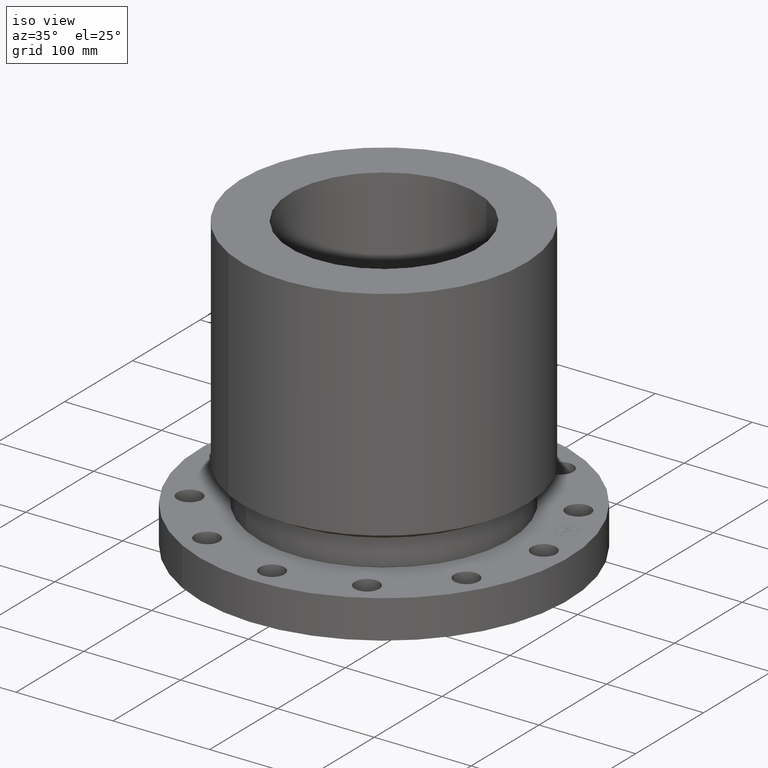
[diagram: clean part render]
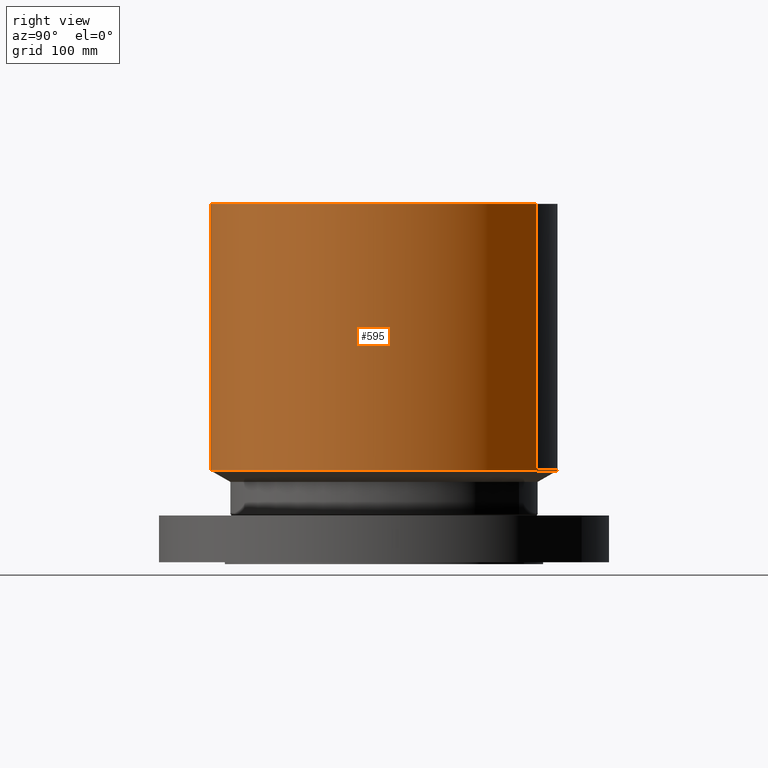
[diagram: tour spotlight — one face highlighted and labeled with its STEP entity id]
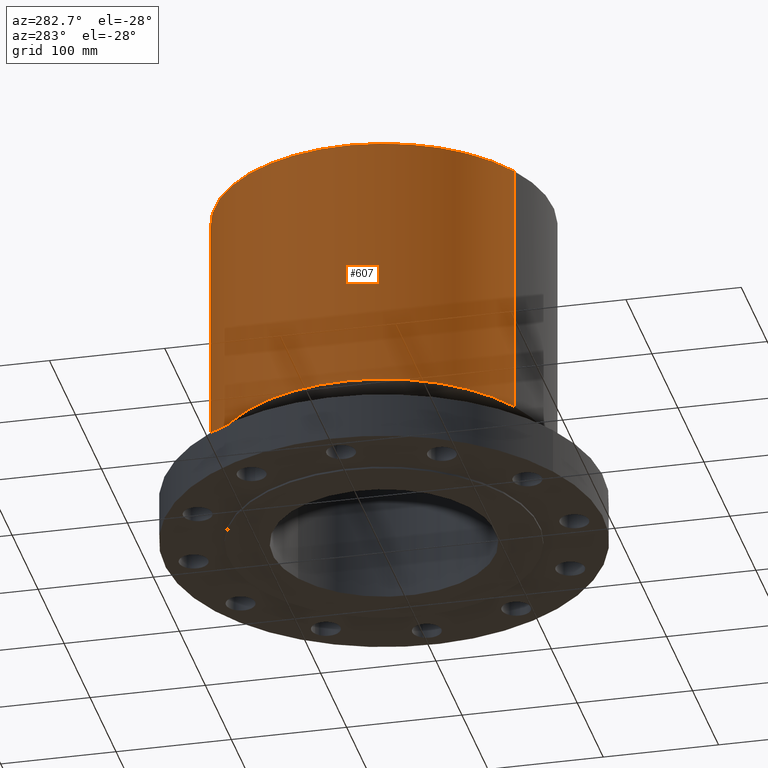
[diagram: tour spotlight — one face highlighted and labeled with its STEP entity id]
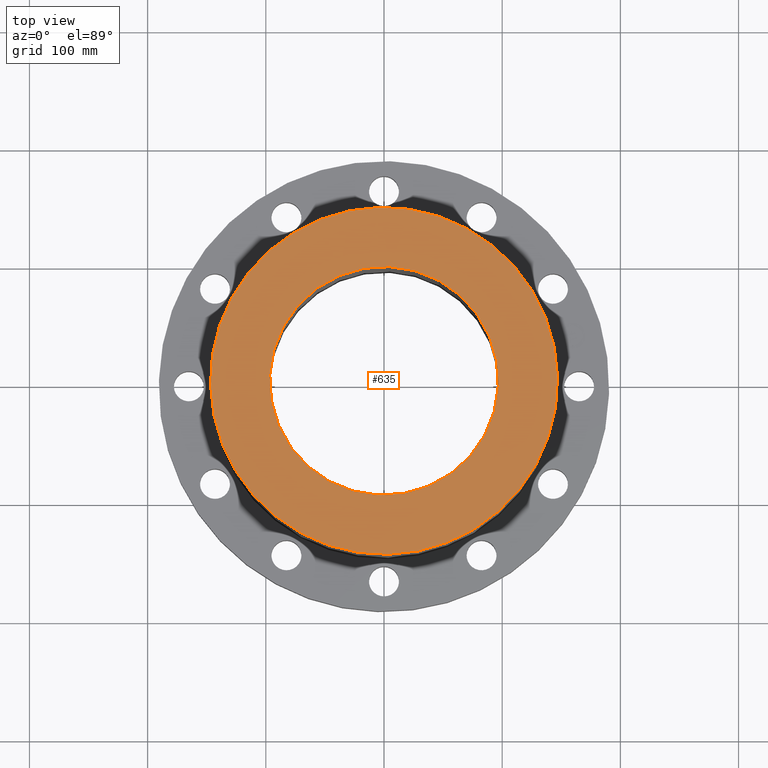
[diagram: tour spotlight — one face highlighted and labeled with its STEP entity id]
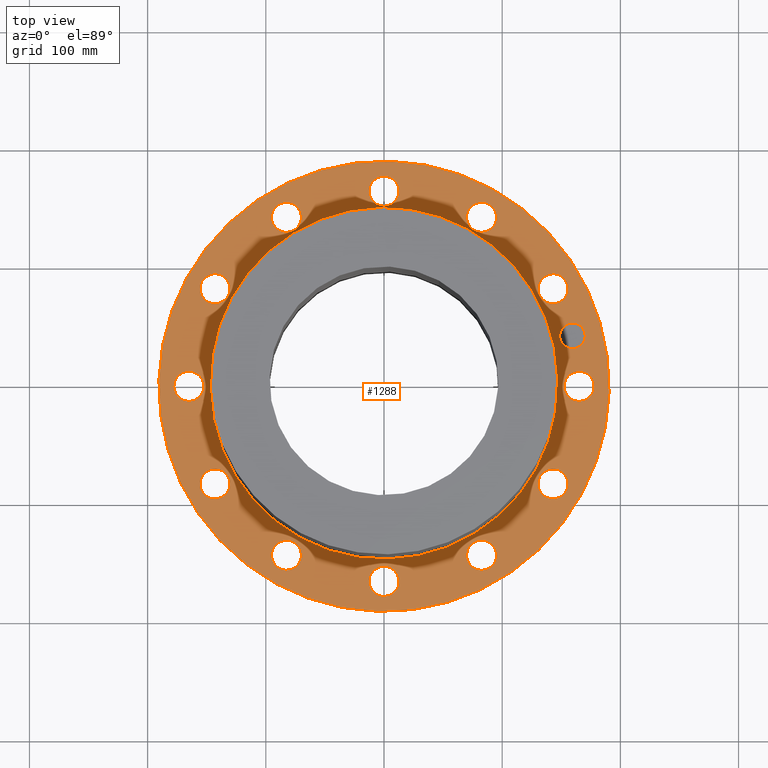
[diagram: tour spotlight — one face highlighted and labeled with its STEP entity id]
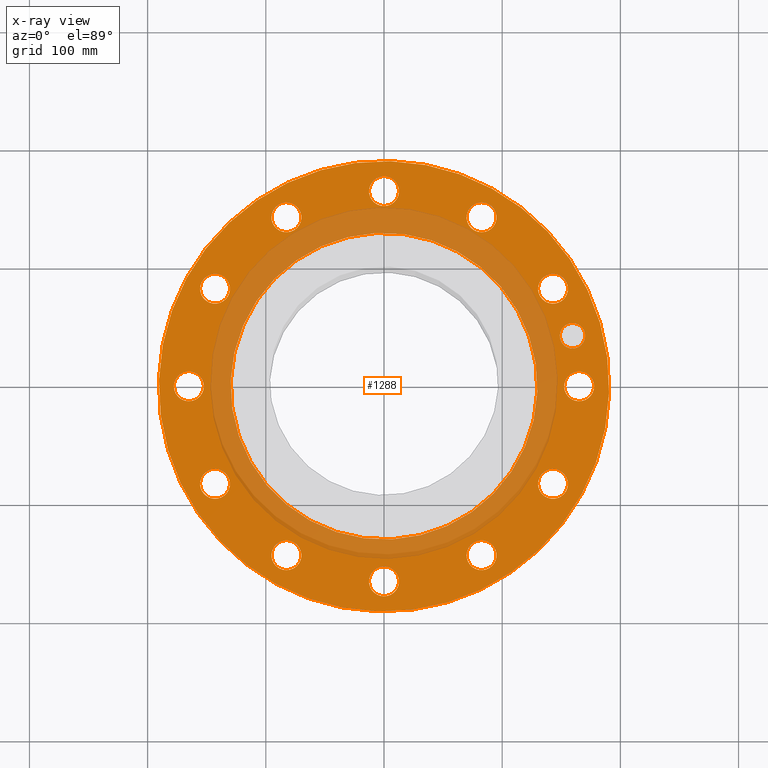
[diagram: x-ray of the same camera — body ghosted, this tour face saturated]
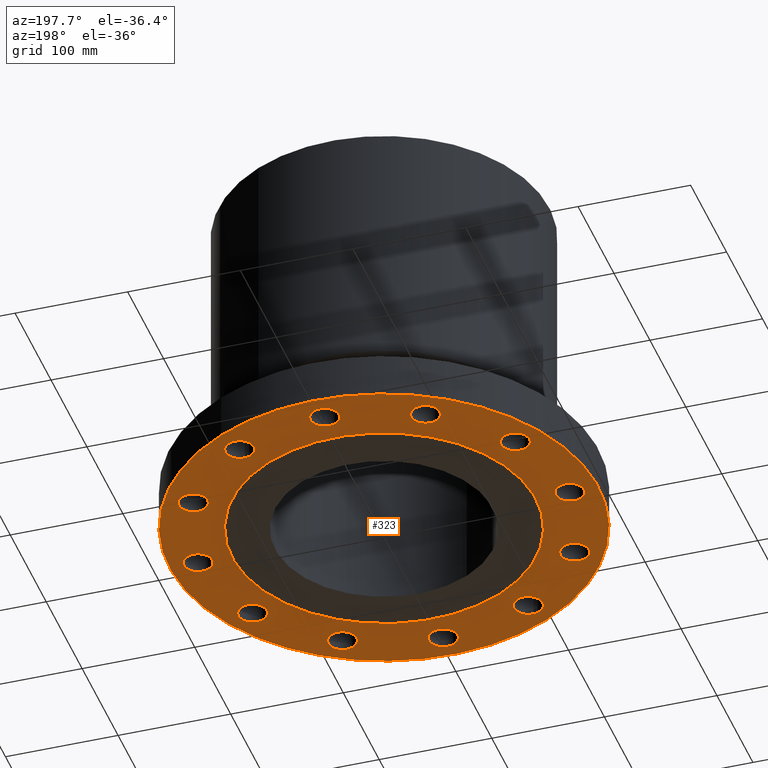
[diagram: tour spotlight — one face highlighted and labeled with its STEP entity id]
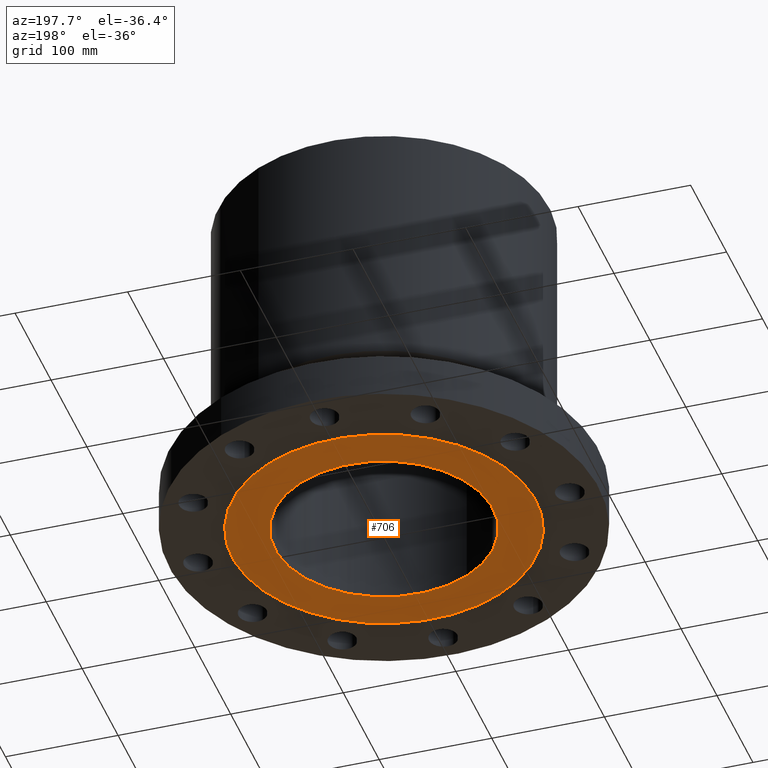
[diagram: tour spotlight — one face highlighted and labeled with its STEP entity id]
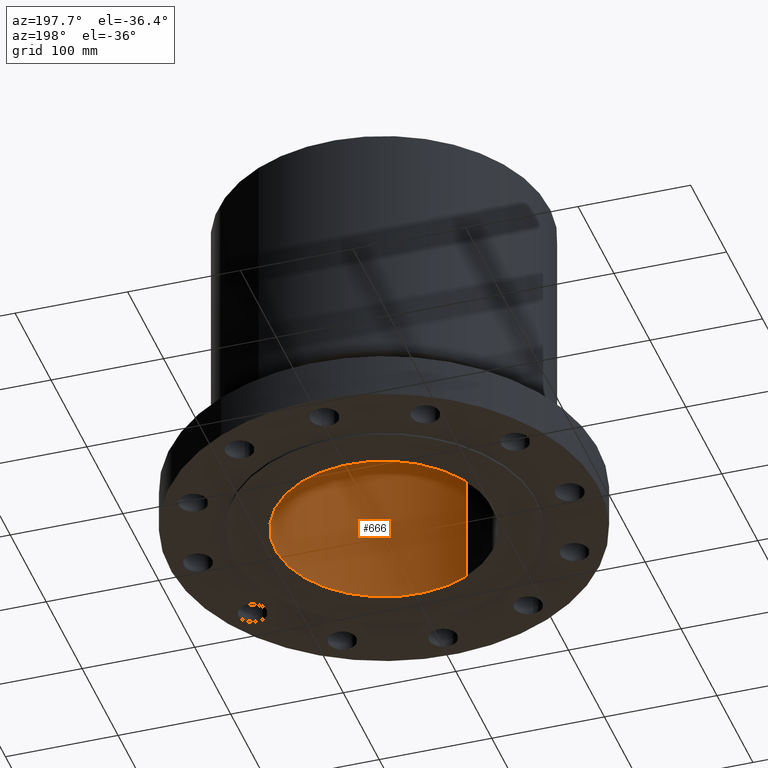
[diagram: tour spotlight — one face highlighted and labeled with its STEP entity id]
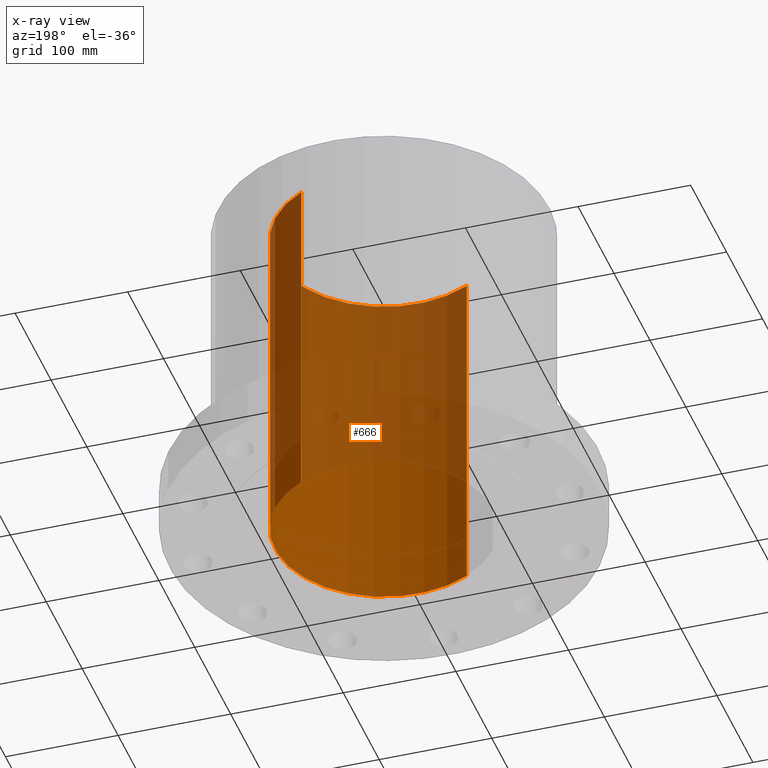
[diagram: x-ray of the same camera — body ghosted, this tour face saturated]
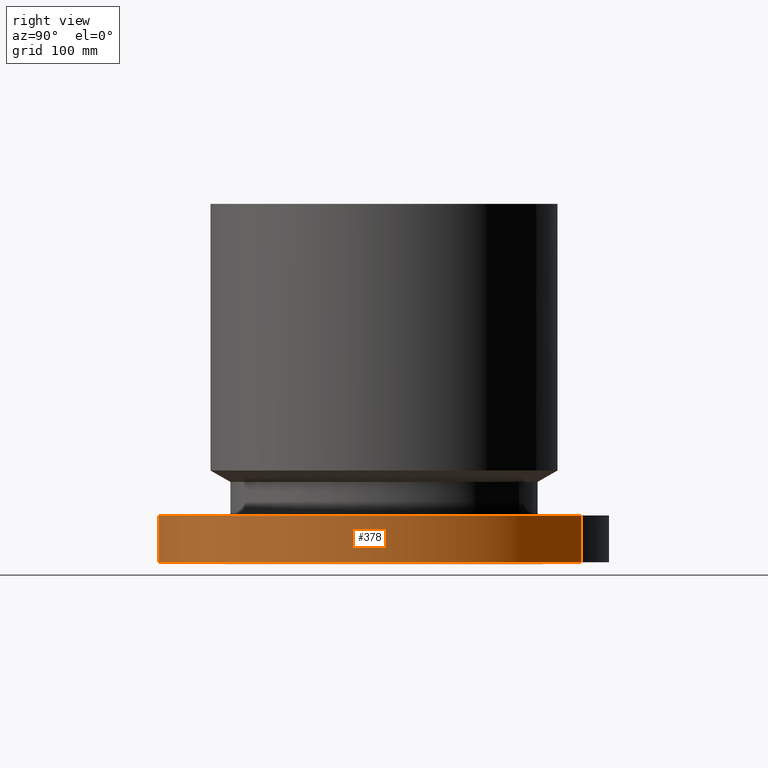
[diagram: tour spotlight — one face highlighted and labeled with its STEP entity id]
A machine part: a face-by-face anatomy tour. The part has 429 B-rep faces; the first image is the clean iso view, then the 8 largest visible faces are spotlighted one at a time (largest first), each with its STEP entity span.

Face 1 — right view, entity #595. In plain terms, the highlighted cylindrical surface (partial cylindrical patch) has radius 146.812 mm, axis along (0, 0, -1).
Definition (entity closure, byte-faithful):
#536=AXIS2_PLACEMENT_3D('Circle Axis2P3D',#534,#535,$) ;
#568=AXIS2_PLACEMENT_3D('Cylinder Axis2P3D',#565,#566,#567) ;
#579=AXIS2_PLACEMENT_3D('Circle Axis2P3D',#577,#578,$) ;
#531=CARTESIAN_POINT('Vertex',(2.77107961314,5.07242720775,3.05566442633)) ;
#534=CARTESIAN_POINT('Axis2P3D Location',(0.,0.,3.05566442633)) ;
#538=CARTESIAN_POINT('Vertex',(-2.77107961314,-5.07242720775,3.05566442633)) ;
#565=CARTESIAN_POINT('Axis2P3D Location',(0.,0.,5.93750000002)) ;
#570=CARTESIAN_POINT('Line Origine',(2.77107961314,5.07242720775,7.49658221319)) ;
#574=CARTESIAN_POINT('Vertex',(2.77107961314,5.07242720775,11.9375)) ;
#577=CARTESIAN_POINT('Axis2P3D Location',(0.,0.,11.9375)) ;
#581=CARTESIAN_POINT('Vertex',(-2.77107961314,-5.07242720775,11.9375)) ;
#584=CARTESIAN_POINT('Line Origine',(-2.77107961314,-5.07242720775,7.49658221319)) ;
#535=DIRECTION('Axis2P3D Direction',(-0.,0.,0.0393700787402)) ;
#566=DIRECTION('Axis2P3D Direction',(0.,0.,-0.0393700787402)) ;
#567=DIRECTION('Axis2P3D XDirection',(-0.0188750212049,-0.0345504945626,0.)) ;
#571=DIRECTION('Vector Direction',(0.,0.,-0.0393700787402)) ;
#578=DIRECTION('Axis2P3D Direction',(0.,0.,-0.0393700787402)) ;
#585=DIRECTION('Vector Direction',(0.,0.,-0.0393700787402)) ;
#572=VECTOR('Line Direction',#571,0.0393700787402) ;
#586=VECTOR('Line Direction',#585,0.0393700787402) ;
#590=ORIENTED_EDGE('',*,*,#540,.F.) ;
#591=ORIENTED_EDGE('',*,*,#576,.T.) ;
#592=ORIENTED_EDGE('',*,*,#583,.T.) ;
#593=ORIENTED_EDGE('',*,*,#588,.F.) ;
#595=ADVANCED_FACE('PartBody',(#594),#569,.T.) ;
#537=CIRCLE('generated circle',#536,5.78000000002) ;
#580=CIRCLE('generated circle',#579,5.78000000002) ;
#569=CYLINDRICAL_SURFACE('generated cylinder',#568,5.78000000002) ;
#540=EDGE_CURVE('',#532,#539,#537,.F.) ;
#576=EDGE_CURVE('',#532,#575,#573,.F.) ;
#583=EDGE_CURVE('',#575,#582,#580,.T.) ;
#588=EDGE_CURVE('',#539,#582,#587,.F.) ;
#589=EDGE_LOOP('',(#590,#591,#592,#593)) ;
#594=FACE_OUTER_BOUND('',#589,.T.) ;
#573=LINE('Line',#570,#572) ;
#587=LINE('Line',#584,#586) ;
#532=VERTEX_POINT('',#531) ;
#539=VERTEX_POINT('',#538) ;
#575=VERTEX_POINT('',#574) ;
#582=VERTEX_POINT('',#581) ;

Face 2 — auxiliary view, entity #607. In plain terms, the highlighted cylindrical surface (partial cylindrical patch) has radius 146.812 mm, axis along (0, 0, -1).
Definition (entity closure, byte-faithful):
#555=AXIS2_PLACEMENT_3D('Circle Axis2P3D',#553,#554,$) ;
#568=AXIS2_PLACEMENT_3D('Cylinder Axis2P3D',#565,#566,#567) ;
#598=AXIS2_PLACEMENT_3D('Circle Axis2P3D',#596,#597,$) ;
#531=CARTESIAN_POINT('Vertex',(2.77107961314,5.07242720775,3.05566442633)) ;
#538=CARTESIAN_POINT('Vertex',(-2.77107961314,-5.07242720775,3.05566442633)) ;
#553=CARTESIAN_POINT('Axis2P3D Location',(0.,0.,3.05566442633)) ;
#565=CARTESIAN_POINT('Axis2P3D Location',(0.,0.,5.93750000002)) ;
#570=CARTESIAN_POINT('Line Origine',(2.77107961314,5.07242720775,7.49658221319)) ;
#574=CARTESIAN_POINT('Vertex',(2.77107961314,5.07242720775,11.9375)) ;
#581=CARTESIAN_POINT('Vertex',(-2.77107961314,-5.07242720775,11.9375)) ;
#584=CARTESIAN_POINT('Line Origine',(-2.77107961314,-5.07242720775,7.49658221319)) ;
#596=CARTESIAN_POINT('Axis2P3D Location',(0.,0.,11.9375)) ;
#554=DIRECTION('Axis2P3D Direction',(-0.,0.,0.0393700787402)) ;
#566=DIRECTION('Axis2P3D Direction',(0.,0.,-0.0393700787402)) ;
#567=DIRECTION('Axis2P3D XDirection',(-0.0188750212049,-0.0345504945626,0.)) ;
#571=DIRECTION('Vector Direction',(0.,0.,-0.0393700787402)) ;
#585=DIRECTION('Vector Direction',(0.,0.,-0.0393700787402)) ;
#597=DIRECTION('Axis2P3D Direction',(0.,0.,-0.0393700787402)) ;
#572=VECTOR('Line Direction',#571,0.0393700787402) ;
#586=VECTOR('Line Direction',#585,0.0393700787402) ;
#602=ORIENTED_EDGE('',*,*,#557,.F.) ;
#603=ORIENTED_EDGE('',*,*,#588,.T.) ;
#604=ORIENTED_EDGE('',*,*,#600,.T.) ;
#605=ORIENTED_EDGE('',*,*,#576,.F.) ;
#607=ADVANCED_FACE('PartBody',(#606),#569,.T.) ;
#556=CIRCLE('generated circle',#555,5.78000000002) ;
#599=CIRCLE('generated circle',#598,5.78000000002) ;
#569=CYLINDRICAL_SURFACE('generated cylinder',#568,5.78000000002) ;
#557=EDGE_CURVE('',#539,#532,#556,.F.) ;
#576=EDGE_CURVE('',#532,#575,#573,.F.) ;
#588=EDGE_CURVE('',#539,#582,#587,.F.) ;
#600=EDGE_CURVE('',#582,#575,#599,.T.) ;
#601=EDGE_LOOP('',(#602,#603,#604,#605)) ;
#606=FACE_OUTER_BOUND('',#601,.T.) ;
#573=LINE('Line',#570,#572) ;
#587=LINE('Line',#584,#586) ;
#532=VERTEX_POINT('',#531) ;
#539=VERTEX_POINT('',#538) ;
#575=VERTEX_POINT('',#574) ;
#582=VERTEX_POINT('',#581) ;

Face 3 — top view, entity #635. In plain terms, the highlighted planar face has unit normal (0, 0, -1).
Definition (entity closure, byte-faithful):
#579=AXIS2_PLACEMENT_3D('Circle Axis2P3D',#577,#578,$) ;
#598=AXIS2_PLACEMENT_3D('Circle Axis2P3D',#596,#597,$) ;
#611=AXIS2_PLACEMENT_3D('Plane Axis2P3D',#608,#609,#610) ;
#619=AXIS2_PLACEMENT_3D('Circle Axis2P3D',#617,#618,$) ;
#628=AXIS2_PLACEMENT_3D('Circle Axis2P3D',#626,#627,$) ;
#574=CARTESIAN_POINT('Vertex',(2.77107961314,5.07242720775,11.9375)) ;
#577=CARTESIAN_POINT('Axis2P3D Location',(0.,0.,11.9375)) ;
#581=CARTESIAN_POINT('Vertex',(-2.77107961314,-5.07242720775,11.9375)) ;
#596=CARTESIAN_POINT('Axis2P3D Location',(0.,0.,11.9375)) ;
#608=CARTESIAN_POINT('Axis2P3D Location',(0.,5.78000000002,11.9375)) ;
#617=CARTESIAN_POINT('Axis2P3D Location',(0.,0.,11.9375)) ;
#621=CARTESIAN_POINT('Vertex',(-1.82661130209,-3.34358956082,11.9375)) ;
#623=CARTESIAN_POINT('Vertex',(1.82661130209,3.34358956082,11.9375)) ;
#626=CARTESIAN_POINT('Axis2P3D Location',(0.,0.,11.9375)) ;
#578=DIRECTION('Axis2P3D Direction',(0.,0.,-0.0393700787402)) ;
#597=DIRECTION('Axis2P3D Direction',(0.,0.,-0.0393700787402)) ;
#609=DIRECTION('Axis2P3D Direction',(0.,0.,-0.0393700787402)) ;
#610=DIRECTION('Axis2P3D XDirection',(0.0393700787402,0.,0.)) ;
#618=DIRECTION('Axis2P3D Direction',(0.,0.,-0.0393700787402)) ;
#627=DIRECTION('Axis2P3D Direction',(0.,0.,-0.0393700787402)) ;
#614=ORIENTED_EDGE('',*,*,#583,.F.) ;
#615=ORIENTED_EDGE('',*,*,#600,.F.) ;
#632=ORIENTED_EDGE('',*,*,#625,.T.) ;
#633=ORIENTED_EDGE('',*,*,#630,.T.) ;
#634=FACE_BOUND('',#631,.T.) ;
#635=ADVANCED_FACE('PartBody',(#616,#634),#612,.F.) ;
#580=CIRCLE('generated circle',#579,5.78000000002) ;
#599=CIRCLE('generated circle',#598,5.78000000002) ;
#620=CIRCLE('generated circle',#619,3.81000000002) ;
#629=CIRCLE('generated circle',#628,3.81000000002) ;
#583=EDGE_CURVE('',#575,#582,#580,.T.) ;
#600=EDGE_CURVE('',#582,#575,#599,.T.) ;
#625=EDGE_CURVE('',#622,#624,#620,.T.) ;
#630=EDGE_CURVE('',#624,#622,#629,.T.) ;
#613=EDGE_LOOP('',(#614,#615)) ;
#631=EDGE_LOOP('',(#632,#633)) ;
#616=FACE_OUTER_BOUND('',#613,.T.) ;
#612=PLANE('',#611) ;
#575=VERTEX_POINT('',#574) ;
#582=VERTEX_POINT('',#581) ;
#622=VERTEX_POINT('',#621) ;
#624=VERTEX_POINT('',#623) ;

Face 4 — top view, entity #1288. An x-ray twin of the same camera follows (body ghosted, this face saturated) — the face is partly hidden behind the body. In plain terms, the highlighted planar face has unit normal (0, 0, -1).
Definition (entity closure, byte-faithful):
#51=AXIS2_PLACEMENT_3D('Circle Axis2P3D',#49,#50,$) ;
#326=AXIS2_PLACEMENT_3D('Circle Axis2P3D',#324,#325,$) ;
#350=AXIS2_PLACEMENT_3D('Circle Axis2P3D',#348,#349,$) ;
#369=AXIS2_PLACEMENT_3D('Circle Axis2P3D',#367,#368,$) ;
#386=AXIS2_PLACEMENT_3D('Circle Axis2P3D',#384,#385,$) ;
#421=AXIS2_PLACEMENT_3D('Circle Axis2P3D',#419,#420,$) ;
#750=AXIS2_PLACEMENT_3D('Circle Axis2P3D',#748,#749,$) ;
#769=AXIS2_PLACEMENT_3D('Circle Axis2P3D',#767,#768,$) ;
#793=AXIS2_PLACEMENT_3D('Circle Axis2P3D',#791,#792,$) ;
#812=AXIS2_PLACEMENT_3D('Circle Axis2P3D',#810,#811,$) ;
#836=AXIS2_PLACEMENT_3D('Circle Axis2P3D',#834,#835,$) ;
#855=AXIS2_PLACEMENT_3D('Circle Axis2P3D',#853,#854,$) ;
#879=AXIS2_PLACEMENT_3D('Circle Axis2P3D',#877,#878,$) ;
#898=AXIS2_PLACEMENT_3D('Circle Axis2P3D',#896,#897,$) ;
#922=AXIS2_PLACEMENT_3D('Circle Axis2P3D',#920,#921,$) ;
#941=AXIS2_PLACEMENT_3D('Circle Axis2P3D',#939,#940,$) ;
#965=AXIS2_PLACEMENT_3D('Circle Axis2P3D',#963,#964,$) ;
#984=AXIS2_PLACEMENT_3D('Circle Axis2P3D',#982,#983,$) ;
#1008=AXIS2_PLACEMENT_3D('Circle Axis2P3D',#1006,#1007,$) ;
#1027=AXIS2_PLACEMENT_3D('Circle Axis2P3D',#1025,#1026,$) ;
#1051=AXIS2_PLACEMENT_3D('Circle Axis2P3D',#1049,#1050,$) ;
#1070=AXIS2_PLACEMENT_3D('Circle Axis2P3D',#1068,#1069,$) ;
#1094=AXIS2_PLACEMENT_3D('Circle Axis2P3D',#1092,#1093,$) ;
#1113=AXIS2_PLACEMENT_3D('Circle Axis2P3D',#1111,#1112,$) ;
#1137=AXIS2_PLACEMENT_3D('Circle Axis2P3D',#1135,#1136,$) ;
#1156=AXIS2_PLACEMENT_3D('Circle Axis2P3D',#1154,#1155,$) ;
#1180=AXIS2_PLACEMENT_3D('Circle Axis2P3D',#1178,#1179,$) ;
#1199=AXIS2_PLACEMENT_3D('Circle Axis2P3D',#1197,#1198,$) ;
#1212=AXIS2_PLACEMENT_3D('Plane Axis2P3D',#1209,#1210,#1211) ;
#1272=AXIS2_PLACEMENT_3D('Circle Axis2P3D',#1270,#1271,$) ;
#1281=AXIS2_PLACEMENT_3D('Circle Axis2P3D',#1279,#1280,$) ;
#44=CARTESIAN_POINT('Vertex',(6.06120871908,-0.239712769303,1.55750000001)) ;
#49=CARTESIAN_POINT('Axis2P3D Location',(6.50000000003,0.,1.55750000001)) ;
#53=CARTESIAN_POINT('Vertex',(6.93879128097,0.239712769303,1.55750000001)) ;
#324=CARTESIAN_POINT('Axis2P3D Location',(6.50000000003,0.,1.55750000001)) ;
#345=CARTESIAN_POINT('Vertex',(-3.59569153955,-6.5818692142,1.55750000001)) ;
#348=CARTESIAN_POINT('Axis2P3D Location',(0.,0.,1.55750000001)) ;
#352=CARTESIAN_POINT('Vertex',(3.59569153955,6.5818692142,1.55750000001)) ;
#367=CARTESIAN_POINT('Axis2P3D Location',(0.,0.,1.55750000001)) ;
#384=CARTESIAN_POINT('Axis2P3D Location',(0.,0.,1.55750000001)) ;
#388=CARTESIAN_POINT('Vertex',(2.44986450228,4.48444689128,1.55750000001)) ;
#390=CARTESIAN_POINT('Vertex',(-2.44986450228,-4.48444689128,1.55750000001)) ;
#419=CARTESIAN_POINT('Axis2P3D Location',(0.,0.,1.55750000001)) ;
#745=CARTESIAN_POINT('Vertex',(5.12930434371,-3.23820170737,1.55750000001)) ;
#748=CARTESIAN_POINT('Axis2P3D Location',(5.62916512462,-3.25000000001,1.55750000001)) ;
#752=CARTESIAN_POINT('Vertex',(6.12902590553,-3.26179829266,1.55750000001)) ;
#767=CARTESIAN_POINT('Axis2P3D Location',(5.62916512462,-3.25000000001,1.55750000001)) ;
#788=CARTESIAN_POINT('Vertex',(2.82300701171,-5.36901711301,1.55750000001)) ;
#791=CARTESIAN_POINT('Axis2P3D Location',(3.25000000001,-5.62916512462,1.55750000001)) ;
#795=CARTESIAN_POINT('Vertex',(3.67699298831,-5.88931313623,1.55750000001)) ;
#810=CARTESIAN_POINT('Axis2P3D Location',(3.25000000001,-5.62916512462,1.55750000001)) ;
#831=CARTESIAN_POINT('Vertex',(-0.239712769303,-6.06120871908,1.55750000001)) ;
#834=CARTESIAN_POINT('Axis2P3D Location',(-7.2095472848E-016,-6.50000000003,1.55750000001)) ;
#838=CARTESIAN_POINT('Vertex',(0.239712769303,-6.93879128097,1.55750000001)) ;
#853=CARTESIAN_POINT('Axis2P3D Location',(-7.2095472848E-016,-6.50000000003,1.55750000001)) ;
#874=CARTESIAN_POINT('Vertex',(-3.23820170737,-5.12930434371,1.55750000001)) ;
#877=CARTESIAN_POINT('Axis2P3D Location',(-3.25000000001,-5.62916512462,1.55750000001)) ;
#881=CARTESIAN_POINT('Vertex',(-3.26179829266,-6.12902590553,1.55750000001)) ;
#896=CARTESIAN_POINT('Axis2P3D Location',(-3.25000000001,-5.62916512462,1.55750000001)) ;
#917=CARTESIAN_POINT('Vertex',(-5.36901711301,-2.82300701171,1.55750000001)) ;
#920=CARTESIAN_POINT('Axis2P3D Location',(-5.62916512462,-3.25000000001,1.55750000001)) ;
#924=CARTESIAN_POINT('Vertex',(-5.88931313623,-3.67699298831,1.55750000001)) ;
#939=CARTESIAN_POINT('Axis2P3D Location',(-5.62916512462,-3.25000000001,1.55750000001)) ;
#960=CARTESIAN_POINT('Vertex',(-6.06120871908,0.239712769303,1.55750000001)) ;
#963=CARTESIAN_POINT('Axis2P3D Location',(-6.50000000003,-7.96020419449E-016,1.55750000001)) ;
#967=CARTESIAN_POINT('Vertex',(-6.93879128097,-0.239712769303,1.55750000001)) ;
#982=CARTESIAN_POINT('Axis2P3D Location',(-6.50000000003,-7.96020419449E-016,1.55750000001)) ;
#1003=CARTESIAN_POINT('Vertex',(-5.12930434371,3.23820170737,1.55750000001)) ;
#1006=CARTESIAN_POINT('Axis2P3D Location',(-5.62916512462,3.25000000001,1.55750000001)) ;
#1010=CARTESIAN_POINT('Vertex',(-6.12902590553,3.26179829266,1.55750000001)) ;
#1025=CARTESIAN_POINT('Axis2P3D Location',(-5.62916512462,3.25000000001,1.55750000001)) ;
#1046=CARTESIAN_POINT('Vertex',(-2.82300701171,5.36901711301,1.55750000001)) ;
#1049=CARTESIAN_POINT('Axis2P3D Location',(-3.25000000001,5.62916512462,1.55750000001)) ;
#1053=CARTESIAN_POINT('Vertex',(-3.67699298831,5.88931313623,1.55750000001)) ;
#1068=CARTESIAN_POINT('Axis2P3D Location',(-3.25000000001,5.62916512462,1.55750000001)) ;
#1089=CARTESIAN_POINT('Vertex',(0.239712769303,6.06120871908,1.55750000001)) ;
#1092=CARTESIAN_POINT('Axis2P3D Location',(-1.19403062917E-015,6.50000000003,1.55750000001)) ;
#1096=CARTESIAN_POINT('Vertex',(-0.239712769303,6.93879128097,1.55750000001)) ;
#1111=CARTESIAN_POINT('Axis2P3D Location',(-1.19403062917E-015,6.50000000003,1.55750000001)) ;
#1132=CARTESIAN_POINT('Vertex',(3.23820170737,5.12930434371,1.55750000001)) ;
#1135=CARTESIAN_POINT('Axis2P3D Location',(3.25000000001,5.62916512462,1.55750000001)) ;
#1139=CARTESIAN_POINT('Vertex',(3.26179829266,6.12902590553,1.55750000001)) ;
#1154=CARTESIAN_POINT('Axis2P3D Location',(3.25000000001,5.62916512462,1.55750000001)) ;
#1175=CARTESIAN_POINT('Vertex',(5.36901711301,2.82300701171,1.55750000001)) ;
#1178=CARTESIAN_POINT('Axis2P3D Location',(5.62916512462,3.25000000001,1.55750000001)) ;
#1182=CARTESIAN_POINT('Vertex',(5.88931313623,3.67699298831,1.55750000001)) ;
#1197=CARTESIAN_POINT('Axis2P3D Location',(5.62916512462,3.25000000001,1.55750000001)) ;
#1209=CARTESIAN_POINT('Axis2P3D Location',(0.,7.50000000003,1.55750000001)) ;
#1270=CARTESIAN_POINT('Axis2P3D Location',(6.2785178709,1.68232379317,1.55750000001)) ;
#1274=CARTESIAN_POINT('Vertex',(6.38851596397,1.2718053211,1.55750000001)) ;
#1276=CARTESIAN_POINT('Vertex',(6.16851977784,2.09284226524,1.55750000001)) ;
#1279=CARTESIAN_POINT('Axis2P3D Location',(6.2785178709,1.68232379317,1.55750000001)) ;
#50=DIRECTION('Axis2P3D Direction',(0.,-0.,0.0393700787402)) ;
#325=DIRECTION('Axis2P3D Direction',(0.,-0.,0.0393700787402)) ;
#349=DIRECTION('Axis2P3D Direction',(0.,0.,-0.0393700787402)) ;
#368=DIRECTION('Axis2P3D Direction',(0.,0.,-0.0393700787402)) ;
#385=DIRECTION('Axis2P3D Direction',(0.,0.,-0.0393700787402)) ;
#420=DIRECTION('Axis2P3D Direction',(0.,0.,-0.0393700787402)) ;
#749=DIRECTION('Axis2P3D Direction',(-0.,0.,0.0393700787402)) ;
#768=DIRECTION('Axis2P3D Direction',(-0.,0.,0.0393700787402)) ;
#792=DIRECTION('Axis2P3D Direction',(-0.,0.,0.0393700787402)) ;
#811=DIRECTION('Axis2P3D Direction',(-0.,0.,0.0393700787402)) ;
#835=DIRECTION('Axis2P3D Direction',(-0.,0.,0.0393700787402)) ;
#854=DIRECTION('Axis2P3D Direction',(-0.,0.,0.0393700787402)) ;
#878=DIRECTION('Axis2P3D Direction',(0.,0.,0.0393700787402)) ;
#897=DIRECTION('Axis2P3D Direction',(0.,0.,0.0393700787402)) ;
#921=DIRECTION('Axis2P3D Direction',(0.,0.,0.0393700787402)) ;
#940=DIRECTION('Axis2P3D Direction',(0.,0.,0.0393700787402)) ;
#964=DIRECTION('Axis2P3D Direction',(0.,0.,0.0393700787402)) ;
#983=DIRECTION('Axis2P3D Direction',(0.,0.,0.0393700787402)) ;
#1007=DIRECTION('Axis2P3D Direction',(0.,0.,0.0393700787402)) ;
#1026=DIRECTION('Axis2P3D Direction',(0.,0.,0.0393700787402)) ;
#1050=DIRECTION('Axis2P3D Direction',(0.,0.,0.0393700787402)) ;
#1069=DIRECTION('Axis2P3D Direction',(0.,0.,0.0393700787402)) ;
#1093=DIRECTION('Axis2P3D Direction',(0.,0.,0.0393700787402)) ;
#1112=DIRECTION('Axis2P3D Direction',(0.,0.,0.0393700787402)) ;
#1136=DIRECTION('Axis2P3D Direction',(0.,-0.,0.0393700787402)) ;
#1155=DIRECTION('Axis2P3D Direction',(0.,-0.,0.0393700787402)) ;
#1179=DIRECTION('Axis2P3D Direction',(0.,-0.,0.0393700787402)) ;
#1198=DIRECTION('Axis2P3D Direction',(0.,-0.,0.0393700787402)) ;
#1210=DIRECTION('Axis2P3D Direction',(0.,0.,-0.0393700787402)) ;
#1211=DIRECTION('Axis2P3D XDirection',(0.0393700787402,0.,0.)) ;
#1271=DIRECTION('Axis2P3D Direction',(0.,0.,-0.0393700787402)) ;
#1280=DIRECTION('Axis2P3D Direction',(0.,0.,-0.0393700787402)) ;
#1215=ORIENTED_EDGE('',*,*,#371,.F.) ;
#1216=ORIENTED_EDGE('',*,*,#354,.F.) ;
#1219=ORIENTED_EDGE('',*,*,#55,.T.) ;
#1220=ORIENTED_EDGE('',*,*,#328,.T.) ;
#1223=ORIENTED_EDGE('',*,*,#423,.T.) ;
#1224=ORIENTED_EDGE('',*,*,#392,.T.) ;
#1227=ORIENTED_EDGE('',*,*,#771,.T.) ;
#1228=ORIENTED_EDGE('',*,*,#754,.T.) ;
#1231=ORIENTED_EDGE('',*,*,#814,.T.) ;
#1232=ORIENTED_EDGE('',*,*,#797,.T.) ;
#1235=ORIENTED_EDGE('',*,*,#857,.T.) ;
#1236=ORIENTED_EDGE('',*,*,#840,.T.) ;
#1239=ORIENTED_EDGE('',*,*,#900,.T.) ;
#1240=ORIENTED_EDGE('',*,*,#883,.T.) ;
#1243=ORIENTED_EDGE('',*,*,#943,.T.) ;
#1244=ORIENTED_EDGE('',*,*,#926,.T.) ;
#1247=ORIENTED_EDGE('',*,*,#986,.T.) ;
#1248=ORIENTED_EDGE('',*,*,#969,.T.) ;
#1251=ORIENTED_EDGE('',*,*,#1029,.T.) ;
#1252=ORIENTED_EDGE('',*,*,#1012,.T.) ;
#1255=ORIENTED_EDGE('',*,*,#1072,.T.) ;
#1256=ORIENTED_EDGE('',*,*,#1055,.T.) ;
#1259=ORIENTED_EDGE('',*,*,#1115,.T.) ;
#1260=ORIENTED_EDGE('',*,*,#1098,.T.) ;
#1263=ORIENTED_EDGE('',*,*,#1158,.T.) ;
#1264=ORIENTED_EDGE('',*,*,#1141,.T.) ;
#1267=ORIENTED_EDGE('',*,*,#1201,.T.) ;
#1268=ORIENTED_EDGE('',*,*,#1184,.T.) ;
#1285=ORIENTED_EDGE('',*,*,#1278,.F.) ;
#1286=ORIENTED_EDGE('',*,*,#1283,.F.) ;
#1221=FACE_BOUND('',#1218,.T.) ;
#1225=FACE_BOUND('',#1222,.T.) ;
#1229=FACE_BOUND('',#1226,.T.) ;
#1233=FACE_BOUND('',#1230,.T.) ;
#1237=FACE_BOUND('',#1234,.T.) ;
#1241=FACE_BOUND('',#1238,.T.) ;
#1245=FACE_BOUND('',#1242,.T.) ;
#1249=FACE_BOUND('',#1246,.T.) ;
#1253=FACE_BOUND('',#1250,.T.) ;
#1257=FACE_BOUND('',#1254,.T.) ;
#1261=FACE_BOUND('',#1258,.T.) ;
#1265=FACE_BOUND('',#1262,.T.) ;
#1269=FACE_BOUND('',#1266,.T.) ;
#1287=FACE_BOUND('',#1284,.T.) ;
#1288=ADVANCED_FACE('PartBody',(#1217,#1221,#1225,#1229,#1233,#1237,#1241,#1245,#1249,#1253,#1257,#1261,#1265,#1269,#1287),#1213,.F.) ;
#52=CIRCLE('generated circle',#51,0.500000000002) ;
#327=CIRCLE('generated circle',#326,0.500000000002) ;
#351=CIRCLE('generated circle',#350,7.50000000003) ;
#370=CIRCLE('generated circle',#369,7.50000000003) ;
#387=CIRCLE('generated circle',#386,5.11000000002) ;
#422=CIRCLE('generated circle',#421,5.11000000002) ;
#751=CIRCLE('generated circle',#750,0.500000000002) ;
#770=CIRCLE('generated circle',#769,0.500000000002) ;
#794=CIRCLE('generated circle',#793,0.500000000002) ;
#813=CIRCLE('generated circle',#812,0.500000000002) ;
#837=CIRCLE('generated circle',#836,0.500000000002) ;
#856=CIRCLE('generated circle',#855,0.500000000002) ;
#880=CIRCLE('generated circle',#879,0.500000000002) ;
#899=CIRCLE('generated circle',#898,0.500000000002) ;
#923=CIRCLE('generated circle',#922,0.500000000002) ;
#942=CIRCLE('generated circle',#941,0.500000000002) ;
#966=CIRCLE('generated circle',#965,0.500000000002) ;
#985=CIRCLE('generated circle',#984,0.500000000002) ;
#1009=CIRCLE('generated circle',#1008,0.500000000002) ;
#1028=CIRCLE('generated circle',#1027,0.500000000002) ;
#1052=CIRCLE('generated circle',#1051,0.500000000002) ;
#1071=CIRCLE('generated circle',#1070,0.500000000002) ;
#1095=CIRCLE('generated circle',#1094,0.500000000002) ;
#1114=CIRCLE('generated circle',#1113,0.500000000002) ;
#1138=CIRCLE('generated circle',#1137,0.500000000002) ;
#1157=CIRCLE('generated circle',#1156,0.500000000002) ;
#1181=CIRCLE('generated circle',#1180,0.500000000002) ;
#1200=CIRCLE('generated circle',#1199,0.500000000002) ;
#1273=CIRCLE('generated circle',#1272,0.424999995752) ;
#1282=CIRCLE('generated circle',#1281,0.424999995752) ;
#55=EDGE_CURVE('',#54,#45,#52,.F.) ;
#328=EDGE_CURVE('',#45,#54,#327,.F.) ;
#354=EDGE_CURVE('',#346,#353,#351,.T.) ;
#371=EDGE_CURVE('',#353,#346,#370,.T.) ;
#392=EDGE_CURVE('',#389,#391,#387,.T.) ;
#423=EDGE_CURVE('',#391,#389,#422,.T.) ;
#754=EDGE_CURVE('',#753,#746,#751,.F.) ;
#771=EDGE_CURVE('',#746,#753,#770,.F.) ;
#797=EDGE_CURVE('',#796,#789,#794,.F.) ;
#814=EDGE_CURVE('',#789,#796,#813,.F.) ;
#840=EDGE_CURVE('',#839,#832,#837,.F.) ;
#857=EDGE_CURVE('',#832,#839,#856,.F.) ;
#883=EDGE_CURVE('',#882,#875,#880,.F.) ;
#900=EDGE_CURVE('',#875,#882,#899,.F.) ;
#926=EDGE_CURVE('',#925,#918,#923,.F.) ;
#943=EDGE_CURVE('',#918,#925,#942,.F.) ;
#969=EDGE_CURVE('',#968,#961,#966,.F.) ;
#986=EDGE_CURVE('',#961,#968,#985,.F.) ;
#1012=EDGE_CURVE('',#1011,#1004,#1009,.F.) ;
#1029=EDGE_CURVE('',#1004,#1011,#1028,.F.) ;
#1055=EDGE_CURVE('',#1054,#1047,#1052,.F.) ;
#1072=EDGE_CURVE('',#1047,#1054,#1071,.F.) ;
#1098=EDGE_CURVE('',#1097,#1090,#1095,.F.) ;
#1115=EDGE_CURVE('',#1090,#1097,#1114,.F.) ;
#1141=EDGE_CURVE('',#1140,#1133,#1138,.F.) ;
#1158=EDGE_CURVE('',#1133,#1140,#1157,.F.) ;
#1184=EDGE_CURVE('',#1183,#1176,#1181,.F.) ;
#1201=EDGE_CURVE('',#1176,#1183,#1200,.F.) ;
#1278=EDGE_CURVE('',#1275,#1277,#1273,.F.) ;
#1283=EDGE_CURVE('',#1277,#1275,#1282,.F.) ;
#1214=EDGE_LOOP('',(#1215,#1216)) ;
#1218=EDGE_LOOP('',(#1219,#1220)) ;
#1222=EDGE_LOOP('',(#1223,#1224)) ;
#1226=EDGE_LOOP('',(#1227,#1228)) ;
#1230=EDGE_LOOP('',(#1231,#1232)) ;
#1234=EDGE_LOOP('',(#1235,#1236)) ;
#1238=EDGE_LOOP('',(#1239,#1240)) ;
#1242=EDGE_LOOP('',(#1243,#1244)) ;
#1246=EDGE_LOOP('',(#1247,#1248)) ;
#1250=EDGE_LOOP('',(#1251,#1252)) ;
#1254=EDGE_LOOP('',(#1255,#1256)) ;
#1258=EDGE_LOOP('',(#1259,#1260)) ;
#1262=EDGE_LOOP('',(#1263,#1264)) ;
#1266=EDGE_LOOP('',(#1267,#1268)) ;
#1284=EDGE_LOOP('',(#1285,#1286)) ;
#1217=FACE_OUTER_BOUND('',#1214,.T.) ;
#1213=PLANE('',#1212) ;
#45=VERTEX_POINT('',#44) ;
#54=VERTEX_POINT('',#53) ;
#346=VERTEX_POINT('',#345) ;
#353=VERTEX_POINT('',#352) ;
#389=VERTEX_POINT('',#388) ;
#391=VERTEX_POINT('',#390) ;
#746=VERTEX_POINT('',#745) ;
#753=VERTEX_POINT('',#752) ;
#789=VERTEX_POINT('',#788) ;
#796=VERTEX_POINT('',#795) ;
#832=VERTEX_POINT('',#831) ;
#839=VERTEX_POINT('',#838) ;
#875=VERTEX_POINT('',#874) ;
#882=VERTEX_POINT('',#881) ;
#918=VERTEX_POINT('',#917) ;
#925=VERTEX_POINT('',#924) ;
#961=VERTEX_POINT('',#960) ;
#968=VERTEX_POINT('',#967) ;
#1004=VERTEX_POINT('',#1003) ;
#1011=VERTEX_POINT('',#1010) ;
#1047=VERTEX_POINT('',#1046) ;
#1054=VERTEX_POINT('',#1053) ;
#1090=VERTEX_POINT('',#1089) ;
#1097=VERTEX_POINT('',#1096) ;
#1133=VERTEX_POINT('',#1132) ;
#1140=VERTEX_POINT('',#1139) ;
#1176=VERTEX_POINT('',#1175) ;
#1183=VERTEX_POINT('',#1182) ;
#1275=VERTEX_POINT('',#1274) ;
#1277=VERTEX_POINT('',#1276) ;

Face 5 — auxiliary view, entity #323. In plain terms, the highlighted planar face has unit normal (0, 0, -1).
Definition (entity closure, byte-faithful):
#65=AXIS2_PLACEMENT_3D('Circle Axis2P3D',#63,#64,$) ;
#78=AXIS2_PLACEMENT_3D('Plane Axis2P3D',#75,#76,#77) ;
#82=AXIS2_PLACEMENT_3D('Circle Axis2P3D',#80,#81,$) ;
#91=AXIS2_PLACEMENT_3D('Circle Axis2P3D',#89,#90,$) ;
#100=AXIS2_PLACEMENT_3D('Circle Axis2P3D',#98,#99,$) ;
#109=AXIS2_PLACEMENT_3D('Circle Axis2P3D',#107,#108,$) ;
#118=AXIS2_PLACEMENT_3D('Circle Axis2P3D',#116,#117,$) ;
#127=AXIS2_PLACEMENT_3D('Circle Axis2P3D',#125,#126,$) ;
#136=AXIS2_PLACEMENT_3D('Circle Axis2P3D',#134,#135,$) ;
#145=AXIS2_PLACEMENT_3D('Circle Axis2P3D',#143,#144,$) ;
#154=AXIS2_PLACEMENT_3D('Circle Axis2P3D',#152,#153,$) ;
#163=AXIS2_PLACEMENT_3D('Circle Axis2P3D',#161,#162,$) ;
#172=AXIS2_PLACEMENT_3D('Circle Axis2P3D',#170,#171,$) ;
#181=AXIS2_PLACEMENT_3D('Circle Axis2P3D',#179,#180,$) ;
#190=AXIS2_PLACEMENT_3D('Circle Axis2P3D',#188,#189,$) ;
#199=AXIS2_PLACEMENT_3D('Circle Axis2P3D',#197,#198,$) ;
#208=AXIS2_PLACEMENT_3D('Circle Axis2P3D',#206,#207,$) ;
#217=AXIS2_PLACEMENT_3D('Circle Axis2P3D',#215,#216,$) ;
#226=AXIS2_PLACEMENT_3D('Circle Axis2P3D',#224,#225,$) ;
#235=AXIS2_PLACEMENT_3D('Circle Axis2P3D',#233,#234,$) ;
#244=AXIS2_PLACEMENT_3D('Circle Axis2P3D',#242,#243,$) ;
#253=AXIS2_PLACEMENT_3D('Circle Axis2P3D',#251,#252,$) ;
#262=AXIS2_PLACEMENT_3D('Circle Axis2P3D',#260,#261,$) ;
#271=AXIS2_PLACEMENT_3D('Circle Axis2P3D',#269,#270,$) ;
#280=AXIS2_PLACEMENT_3D('Circle Axis2P3D',#278,#279,$) ;
#289=AXIS2_PLACEMENT_3D('Circle Axis2P3D',#287,#288,$) ;
#298=AXIS2_PLACEMENT_3D('Circle Axis2P3D',#296,#297,$) ;
#307=AXIS2_PLACEMENT_3D('Circle Axis2P3D',#305,#306,$) ;
#316=AXIS2_PLACEMENT_3D('Circle Axis2P3D',#314,#315,$) ;
#46=CARTESIAN_POINT('Vertex',(6.06120871908,-0.239712769303,2.2401153548E-016)) ;
#60=CARTESIAN_POINT('Vertex',(6.93879128097,0.239712769303,2.2401153548E-016)) ;
#63=CARTESIAN_POINT('Axis2P3D Location',(6.50000000003,0.,0.)) ;
#75=CARTESIAN_POINT('Axis2P3D Location',(0.,5.31000000002,0.)) ;
#80=CARTESIAN_POINT('Axis2P3D Location',(0.,0.,0.)) ;
#84=CARTESIAN_POINT('Vertex',(-3.59569153955,-6.5818692142,1.1189649382E-015)) ;
#86=CARTESIAN_POINT('Vertex',(3.59569153955,6.5818692142,1.1189649382E-015)) ;
#89=CARTESIAN_POINT('Axis2P3D Location',(0.,0.,0.)) ;
#98=CARTESIAN_POINT('Axis2P3D Location',(6.50000000003,1.1189649382E-015,0.)) ;
#107=CARTESIAN_POINT('Axis2P3D Location',(0.,0.,0.)) ;
#111=CARTESIAN_POINT('Vertex',(2.54574961,4.65996340366,0.)) ;
#113=CARTESIAN_POINT('Vertex',(-2.54574961,-4.65996340366,0.)) ;
#116=CARTESIAN_POINT('Axis2P3D Location',(0.,0.,0.)) ;
#125=CARTESIAN_POINT('Axis2P3D Location',(5.62916512462,-3.25000000001,0.)) ;
#129=CARTESIAN_POINT('Vertex',(6.12902590553,-3.26179829266,0.)) ;
#131=CARTESIAN_POINT('Vertex',(5.12930434371,-3.23820170737,0.)) ;
#134=CARTESIAN_POINT('Axis2P3D Location',(5.62916512462,-3.25000000001,0.)) ;
#143=CARTESIAN_POINT('Axis2P3D Location',(3.25000000001,-5.62916512462,0.)) ;
#147=CARTESIAN_POINT('Vertex',(3.67699298831,-5.88931313623,0.)) ;
#149=CARTESIAN_POINT('Vertex',(2.82300701171,-5.36901711301,0.)) ;
#152=CARTESIAN_POINT('Axis2P3D Location',(3.25000000001,-5.62916512462,0.)) ;
#161=CARTESIAN_POINT('Axis2P3D Location',(4.19611851827E-016,-6.50000000003,0.)) ;
#165=CARTESIAN_POINT('Vertex',(0.239712769303,-6.93879128097,0.)) ;
#167=CARTESIAN_POINT('Vertex',(-0.239712769303,-6.06120871908,0.)) ;
#170=CARTESIAN_POINT('Axis2P3D Location',(-1.32877086412E-015,-6.50000000003,0.)) ;
#179=CARTESIAN_POINT('Axis2P3D Location',(-3.25000000001,-5.62916512462,0.)) ;
#183=CARTESIAN_POINT('Vertex',(-3.26179829266,-6.12902590553,0.)) ;
#185=CARTESIAN_POINT('Vertex',(-3.23820170737,-5.12930434371,0.)) ;
#188=CARTESIAN_POINT('Axis2P3D Location',(-3.25000000001,-5.62916512462,0.)) ;
#197=CARTESIAN_POINT('Axis2P3D Location',(-5.62916512462,-3.25000000001,0.)) ;
#201=CARTESIAN_POINT('Vertex',(-5.88931313623,-3.67699298831,0.)) ;
#203=CARTESIAN_POINT('Vertex',(-5.36901711301,-2.82300701171,0.)) ;
#206=CARTESIAN_POINT('Axis2P3D Location',(-5.62916512462,-3.25000000001,0.)) ;
#215=CARTESIAN_POINT('Axis2P3D Location',(-6.50000000003,-1.1189649382E-015,0.)) ;
#219=CARTESIAN_POINT('Vertex',(-6.93879128097,-0.239712769303,0.)) ;
#221=CARTESIAN_POINT('Vertex',(-6.06120871908,0.239712769303,0.)) ;
#224=CARTESIAN_POINT('Axis2P3D Location',(-6.50000000003,0.,0.)) ;
#233=CARTESIAN_POINT('Axis2P3D Location',(-5.62916512462,3.25000000001,0.)) ;
#237=CARTESIAN_POINT('Vertex',(-6.12902590553,3.26179829266,0.)) ;
#239=CARTESIAN_POINT('Vertex',(-5.12930434371,3.23820170737,0.)) ;
#242=CARTESIAN_POINT('Axis2P3D Location',(-5.62916512462,3.25000000001,0.)) ;
#251=CARTESIAN_POINT('Axis2P3D Location',(-3.25000000001,5.62916512462,0.)) ;
#255=CARTESIAN_POINT('Vertex',(-3.67699298831,5.88931313623,0.)) ;
#257=CARTESIAN_POINT('Vertex',(-2.82300701171,5.36901711301,0.)) ;
#260=CARTESIAN_POINT('Axis2P3D Location',(-3.25000000001,5.62916512462,0.)) ;
#269=CARTESIAN_POINT('Axis2P3D Location',(-1.32877086412E-015,6.50000000003,0.)) ;
#273=CARTESIAN_POINT('Vertex',(-0.239712769303,6.93879128097,0.)) ;
#275=CARTESIAN_POINT('Vertex',(0.239712769303,6.06120871908,0.)) ;
#278=CARTESIAN_POINT('Axis2P3D Location',(-1.67844740731E-015,6.50000000003,0.)) ;
#287=CARTESIAN_POINT('Axis2P3D Location',(3.25000000001,5.62916512462,0.)) ;
#291=CARTESIAN_POINT('Vertex',(3.26179829266,6.12902590553,0.)) ;
#293=CARTESIAN_POINT('Vertex',(3.23820170737,5.12930434371,0.)) ;
#296=CARTESIAN_POINT('Axis2P3D Location',(3.25000000001,5.62916512462,0.)) ;
#305=CARTESIAN_POINT('Axis2P3D Location',(5.62916512462,3.25000000001,0.)) ;
#309=CARTESIAN_POINT('Vertex',(5.88931313623,3.67699298831,0.)) ;
#311=CARTESIAN_POINT('Vertex',(5.36901711301,2.82300701171,0.)) ;
#314=CARTESIAN_POINT('Axis2P3D Location',(5.62916512462,3.25000000001,0.)) ;
#64=DIRECTION('Axis2P3D Direction',(0.,-0.,0.0393700787402)) ;
#76=DIRECTION('Axis2P3D Direction',(0.,0.,-0.0393700787402)) ;
#77=DIRECTION('Axis2P3D XDirection',(0.0393700787402,0.,0.)) ;
#81=DIRECTION('Axis2P3D Direction',(0.,0.,-0.0393700787402)) ;
#90=DIRECTION('Axis2P3D Direction',(0.,0.,-0.0393700787402)) ;
#99=DIRECTION('Axis2P3D Direction',(0.,0.,-0.0393700787402)) ;
#108=DIRECTION('Axis2P3D Direction',(0.,0.,-0.0393700787402)) ;
#117=DIRECTION('Axis2P3D Direction',(0.,0.,-0.0393700787402)) ;
#126=DIRECTION('Axis2P3D Direction',(0.,0.,-0.0393700787402)) ;
#135=DIRECTION('Axis2P3D Direction',(0.,0.,-0.0393700787402)) ;
#144=DIRECTION('Axis2P3D Direction',(0.,0.,-0.0393700787402)) ;
#153=DIRECTION('Axis2P3D Direction',(0.,0.,-0.0393700787402)) ;
#162=DIRECTION('Axis2P3D Direction',(0.,0.,-0.0393700787402)) ;
#171=DIRECTION('Axis2P3D Direction',(0.,0.,-0.0393700787402)) ;
#180=DIRECTION('Axis2P3D Direction',(0.,0.,-0.0393700787402)) ;
#189=DIRECTION('Axis2P3D Direction',(0.,0.,-0.0393700787402)) ;
#198=DIRECTION('Axis2P3D Direction',(0.,0.,-0.0393700787402)) ;
#207=DIRECTION('Axis2P3D Direction',(0.,0.,-0.0393700787402)) ;
#216=DIRECTION('Axis2P3D Direction',(0.,0.,-0.0393700787402)) ;
#225=DIRECTION('Axis2P3D Direction',(0.,0.,-0.0393700787402)) ;
#234=DIRECTION('Axis2P3D Direction',(0.,0.,-0.0393700787402)) ;
#243=DIRECTION('Axis2P3D Direction',(0.,0.,-0.0393700787402)) ;
#252=DIRECTION('Axis2P3D Direction',(0.,0.,-0.0393700787402)) ;
#261=DIRECTION('Axis2P3D Direction',(0.,0.,-0.0393700787402)) ;
#270=DIRECTION('Axis2P3D Direction',(0.,0.,-0.0393700787402)) ;
#279=DIRECTION('Axis2P3D Direction',(0.,0.,-0.0393700787402)) ;
#288=DIRECTION('Axis2P3D Direction',(0.,0.,-0.0393700787402)) ;
#297=DIRECTION('Axis2P3D Direction',(0.,0.,-0.0393700787402)) ;
#306=DIRECTION('Axis2P3D Direction',(0.,0.,-0.0393700787402)) ;
#315=DIRECTION('Axis2P3D Direction',(0.,0.,-0.0393700787402)) ;
#95=ORIENTED_EDGE('',*,*,#88,.T.) ;
#96=ORIENTED_EDGE('',*,*,#93,.T.) ;
#104=ORIENTED_EDGE('',*,*,#102,.F.) ;
#105=ORIENTED_EDGE('',*,*,#67,.F.) ;
#122=ORIENTED_EDGE('',*,*,#115,.F.) ;
#123=ORIENTED_EDGE('',*,*,#120,.F.) ;
#140=ORIENTED_EDGE('',*,*,#133,.F.) ;
#141=ORIENTED_EDGE('',*,*,#138,.F.) ;
#158=ORIENTED_EDGE('',*,*,#151,.F.) ;
#159=ORIENTED_EDGE('',*,*,#156,.F.) ;
#176=ORIENTED_EDGE('',*,*,#169,.F.) ;
#177=ORIENTED_EDGE('',*,*,#174,.F.) ;
#194=ORIENTED_EDGE('',*,*,#187,.F.) ;
#195=ORIENTED_EDGE('',*,*,#192,.F.) ;
#212=ORIENTED_EDGE('',*,*,#205,.F.) ;
#213=ORIENTED_EDGE('',*,*,#210,.F.) ;
#230=ORIENTED_EDGE('',*,*,#223,.F.) ;
#231=ORIENTED_EDGE('',*,*,#228,.F.) ;
#248=ORIENTED_EDGE('',*,*,#241,.F.) ;
#249=ORIENTED_EDGE('',*,*,#246,.F.) ;
#266=ORIENTED_EDGE('',*,*,#259,.F.) ;
#267=ORIENTED_EDGE('',*,*,#264,.F.) ;
#284=ORIENTED_EDGE('',*,*,#277,.F.) ;
#285=ORIENTED_EDGE('',*,*,#282,.F.) ;
#302=ORIENTED_EDGE('',*,*,#295,.F.) ;
#303=ORIENTED_EDGE('',*,*,#300,.F.) ;
#320=ORIENTED_EDGE('',*,*,#313,.F.) ;
#321=ORIENTED_EDGE('',*,*,#318,.F.) ;
#106=FACE_BOUND('',#103,.T.) ;
#124=FACE_BOUND('',#121,.T.) ;
#142=FACE_BOUND('',#139,.T.) ;
#160=FACE_BOUND('',#157,.T.) ;
#178=FACE_BOUND('',#175,.T.) ;
#196=FACE_BOUND('',#193,.T.) ;
#214=FACE_BOUND('',#211,.T.) ;
#232=FACE_BOUND('',#229,.T.) ;
#250=FACE_BOUND('',#247,.T.) ;
#268=FACE_BOUND('',#265,.T.) ;
#286=FACE_BOUND('',#283,.T.) ;
#304=FACE_BOUND('',#301,.T.) ;
#322=FACE_BOUND('',#319,.T.) ;
#323=ADVANCED_FACE('PartBody',(#97,#106,#124,#142,#160,#178,#196,#214,#232,#250,#268,#286,#304,#322),#79,.T.) ;
#66=CIRCLE('generated circle',#65,0.500000000002) ;
#83=CIRCLE('generated circle',#82,7.50000000003) ;
#92=CIRCLE('generated circle',#91,7.50000000003) ;
#101=CIRCLE('generated circle',#100,0.500000000002) ;
#110=CIRCLE('generated circle',#109,5.31000000002) ;
#119=CIRCLE('generated circle',#118,5.31000000002) ;
#128=CIRCLE('generated circle',#127,0.500000000002) ;
#137=CIRCLE('generated circle',#136,0.500000000002) ;
#146=CIRCLE('generated circle',#145,0.500000000002) ;
#155=CIRCLE('generated circle',#154,0.500000000002) ;
#164=CIRCLE('generated circle',#163,0.500000000002) ;
#173=CIRCLE('generated circle',#172,0.500000000002) ;
#182=CIRCLE('generated circle',#181,0.500000000002) ;
#191=CIRCLE('generated circle',#190,0.500000000002) ;
#200=CIRCLE('generated circle',#199,0.500000000002) ;
#209=CIRCLE('generated circle',#208,0.500000000002) ;
#218=CIRCLE('generated circle',#217,0.500000000002) ;
#227=CIRCLE('generated circle',#226,0.500000000002) ;
#236=CIRCLE('generated circle',#235,0.500000000002) ;
#245=CIRCLE('generated circle',#244,0.500000000002) ;
#254=CIRCLE('generated circle',#253,0.500000000002) ;
#263=CIRCLE('generated circle',#262,0.500000000002) ;
#272=CIRCLE('generated circle',#271,0.500000000002) ;
#281=CIRCLE('generated circle',#280,0.500000000002) ;
#290=CIRCLE('generated circle',#289,0.500000000002) ;
#299=CIRCLE('generated circle',#298,0.500000000002) ;
#308=CIRCLE('generated circle',#307,0.500000000002) ;
#317=CIRCLE('generated circle',#316,0.500000000002) ;
#67=EDGE_CURVE('',#61,#47,#66,.F.) ;
#88=EDGE_CURVE('',#85,#87,#83,.T.) ;
#93=EDGE_CURVE('',#87,#85,#92,.T.) ;
#102=EDGE_CURVE('',#47,#61,#101,.T.) ;
#115=EDGE_CURVE('',#112,#114,#110,.T.) ;
#120=EDGE_CURVE('',#114,#112,#119,.T.) ;
#133=EDGE_CURVE('',#130,#132,#128,.T.) ;
#138=EDGE_CURVE('',#132,#130,#137,.T.) ;
#151=EDGE_CURVE('',#148,#150,#146,.T.) ;
#156=EDGE_CURVE('',#150,#148,#155,.T.) ;
#169=EDGE_CURVE('',#166,#168,#164,.T.) ;
#174=EDGE_CURVE('',#168,#166,#173,.T.) ;
#187=EDGE_CURVE('',#184,#186,#182,.T.) ;
#192=EDGE_CURVE('',#186,#184,#191,.T.) ;
#205=EDGE_CURVE('',#202,#204,#200,.T.) ;
#210=EDGE_CURVE('',#204,#202,#209,.T.) ;
#223=EDGE_CURVE('',#220,#222,#218,.T.) ;
#228=EDGE_CURVE('',#222,#220,#227,.T.) ;
#241=EDGE_CURVE('',#238,#240,#236,.T.) ;
#246=EDGE_CURVE('',#240,#238,#245,.T.) ;
#259=EDGE_CURVE('',#256,#258,#254,.T.) ;
#264=EDGE_CURVE('',#258,#256,#263,.T.) ;
#277=EDGE_CURVE('',#274,#276,#272,.T.) ;
#282=EDGE_CURVE('',#276,#274,#281,.T.) ;
#295=EDGE_CURVE('',#292,#294,#290,.T.) ;
#300=EDGE_CURVE('',#294,#292,#299,.T.) ;
#313=EDGE_CURVE('',#310,#312,#308,.T.) ;
#318=EDGE_CURVE('',#312,#310,#317,.T.) ;
#94=EDGE_LOOP('',(#95,#96)) ;
#103=EDGE_LOOP('',(#104,#105)) ;
#121=EDGE_LOOP('',(#122,#123)) ;
#139=EDGE_LOOP('',(#140,#141)) ;
#157=EDGE_LOOP('',(#158,#159)) ;
#175=EDGE_LOOP('',(#176,#177)) ;
#193=EDGE_LOOP('',(#194,#195)) ;
#211=EDGE_LOOP('',(#212,#213)) ;
#229=EDGE_LOOP('',(#230,#231)) ;
#247=EDGE_LOOP('',(#248,#249)) ;
#265=EDGE_LOOP('',(#266,#267)) ;
#283=EDGE_LOOP('',(#284,#285)) ;
#301=EDGE_LOOP('',(#302,#303)) ;
#319=EDGE_LOOP('',(#320,#321)) ;
#97=FACE_OUTER_BOUND('',#94,.T.) ;
#79=PLANE('',#78) ;
#47=VERTEX_POINT('',#46) ;
#61=VERTEX_POINT('',#60) ;
#85=VERTEX_POINT('',#84) ;
#87=VERTEX_POINT('',#86) ;
#112=VERTEX_POINT('',#111) ;
#114=VERTEX_POINT('',#113) ;
#130=VERTEX_POINT('',#129) ;
#132=VERTEX_POINT('',#131) ;
#148=VERTEX_POINT('',#147) ;
#150=VERTEX_POINT('',#149) ;
#166=VERTEX_POINT('',#165) ;
#168=VERTEX_POINT('',#167) ;
#184=VERTEX_POINT('',#183) ;
#186=VERTEX_POINT('',#185) ;
#202=VERTEX_POINT('',#201) ;
#204=VERTEX_POINT('',#203) ;
#220=VERTEX_POINT('',#219) ;
#222=VERTEX_POINT('',#221) ;
#238=VERTEX_POINT('',#237) ;
#240=VERTEX_POINT('',#239) ;
#256=VERTEX_POINT('',#255) ;
#258=VERTEX_POINT('',#257) ;
#274=VERTEX_POINT('',#273) ;
#276=VERTEX_POINT('',#275) ;
#292=VERTEX_POINT('',#291) ;
#294=VERTEX_POINT('',#293) ;
#310=VERTEX_POINT('',#309) ;
#312=VERTEX_POINT('',#311) ;

Face 6 — auxiliary view, entity #706. In plain terms, the highlighted planar face has unit normal (0, 0, -1).
Definition (entity closure, byte-faithful):
#650=AXIS2_PLACEMENT_3D('Circle Axis2P3D',#648,#649,$) ;
#669=AXIS2_PLACEMENT_3D('Circle Axis2P3D',#667,#668,$) ;
#682=AXIS2_PLACEMENT_3D('Plane Axis2P3D',#679,#680,#681) ;
#686=AXIS2_PLACEMENT_3D('Circle Axis2P3D',#684,#685,$) ;
#695=AXIS2_PLACEMENT_3D('Circle Axis2P3D',#693,#694,$) ;
#645=CARTESIAN_POINT('Vertex',(1.82661130209,3.34358956082,-0.0625000000003)) ;
#648=CARTESIAN_POINT('Axis2P3D Location',(0.,0.,-0.0625000000003)) ;
#652=CARTESIAN_POINT('Vertex',(-1.82661130209,-3.34358956082,-0.0625000000003)) ;
#667=CARTESIAN_POINT('Axis2P3D Location',(0.,0.,-0.0625000000003)) ;
#679=CARTESIAN_POINT('Axis2P3D Location',(0.,3.81000000002,-0.0625000000003)) ;
#684=CARTESIAN_POINT('Axis2P3D Location',(0.,0.,-0.0625000000003)) ;
#688=CARTESIAN_POINT('Vertex',(-2.54574961,-4.65996340366,-0.0625000000003)) ;
#690=CARTESIAN_POINT('Vertex',(2.54574961,4.65996340366,-0.0625000000003)) ;
#693=CARTESIAN_POINT('Axis2P3D Location',(0.,0.,-0.0625000000003)) ;
#649=DIRECTION('Axis2P3D Direction',(0.,0.,-0.0393700787402)) ;
#668=DIRECTION('Axis2P3D Direction',(0.,0.,-0.0393700787402)) ;
#680=DIRECTION('Axis2P3D Direction',(0.,0.,-0.0393700787402)) ;
#681=DIRECTION('Axis2P3D XDirection',(0.0393700787402,0.,0.)) ;
#685=DIRECTION('Axis2P3D Direction',(0.,0.,-0.0393700787402)) ;
#694=DIRECTION('Axis2P3D Direction',(0.,0.,-0.0393700787402)) ;
#699=ORIENTED_EDGE('',*,*,#692,.T.) ;
#700=ORIENTED_EDGE('',*,*,#697,.T.) ;
#703=ORIENTED_EDGE('',*,*,#654,.F.) ;
#704=ORIENTED_EDGE('',*,*,#671,.F.) ;
#705=FACE_BOUND('',#702,.T.) ;
#706=ADVANCED_FACE('PartBody',(#701,#705),#683,.T.) ;
#651=CIRCLE('generated circle',#650,3.81000000002) ;
#670=CIRCLE('generated circle',#669,3.81000000002) ;
#687=CIRCLE('generated circle',#686,5.31000000002) ;
#696=CIRCLE('generated circle',#695,5.31000000002) ;
#654=EDGE_CURVE('',#646,#653,#651,.T.) ;
#671=EDGE_CURVE('',#653,#646,#670,.T.) ;
#692=EDGE_CURVE('',#689,#691,#687,.T.) ;
#697=EDGE_CURVE('',#691,#689,#696,.T.) ;
#698=EDGE_LOOP('',(#699,#700)) ;
#702=EDGE_LOOP('',(#703,#704)) ;
#701=FACE_OUTER_BOUND('',#698,.T.) ;
#683=PLANE('',#682) ;
#646=VERTEX_POINT('',#645) ;
#653=VERTEX_POINT('',#652) ;
#689=VERTEX_POINT('',#688) ;
#691=VERTEX_POINT('',#690) ;

Face 7 — auxiliary view, entity #666. An x-ray twin of the same camera follows (body ghosted, this face saturated) — the face is partly hidden behind the body. In plain terms, the highlighted cylindrical surface (partial cylindrical patch) has radius 96.774 mm, axis along (0, 0, -1).
Definition (entity closure, byte-faithful):
#628=AXIS2_PLACEMENT_3D('Circle Axis2P3D',#626,#627,$) ;
#639=AXIS2_PLACEMENT_3D('Cylinder Axis2P3D',#636,#637,#638) ;
#650=AXIS2_PLACEMENT_3D('Circle Axis2P3D',#648,#649,$) ;
#621=CARTESIAN_POINT('Vertex',(-1.82661130209,-3.34358956082,11.9375)) ;
#623=CARTESIAN_POINT('Vertex',(1.82661130209,3.34358956082,11.9375)) ;
#626=CARTESIAN_POINT('Axis2P3D Location',(0.,0.,11.9375)) ;
#636=CARTESIAN_POINT('Axis2P3D Location',(0.,0.,5.93750000002)) ;
#641=CARTESIAN_POINT('Line Origine',(1.82661130209,3.34358956082,5.93750000002)) ;
#645=CARTESIAN_POINT('Vertex',(1.82661130209,3.34358956082,-0.0625000000003)) ;
#648=CARTESIAN_POINT('Axis2P3D Location',(0.,0.,-0.0625000000003)) ;
#652=CARTESIAN_POINT('Vertex',(-1.82661130209,-3.34358956082,-0.0625000000003)) ;
#655=CARTESIAN_POINT('Line Origine',(-1.82661130209,-3.34358956082,5.93750000002)) ;
#627=DIRECTION('Axis2P3D Direction',(0.,0.,-0.0393700787402)) ;
#637=DIRECTION('Axis2P3D Direction',(0.,0.,-0.0393700787402)) ;
#638=DIRECTION('Axis2P3D XDirection',(-0.0188750212049,-0.0345504945626,0.)) ;
#642=DIRECTION('Vector Direction',(0.,0.,-0.0393700787402)) ;
#649=DIRECTION('Axis2P3D Direction',(0.,0.,-0.0393700787402)) ;
#656=DIRECTION('Vector Direction',(0.,0.,-0.0393700787402)) ;
#643=VECTOR('Line Direction',#642,0.0393700787402) ;
#657=VECTOR('Line Direction',#656,0.0393700787402) ;
#661=ORIENTED_EDGE('',*,*,#630,.F.) ;
#662=ORIENTED_EDGE('',*,*,#647,.T.) ;
#663=ORIENTED_EDGE('',*,*,#654,.T.) ;
#664=ORIENTED_EDGE('',*,*,#659,.F.) ;
#666=ADVANCED_FACE('PartBody',(#665),#640,.F.) ;
#629=CIRCLE('generated circle',#628,3.81000000002) ;
#651=CIRCLE('generated circle',#650,3.81000000002) ;
#640=CYLINDRICAL_SURFACE('generated cylinder',#639,3.81000000002) ;
#630=EDGE_CURVE('',#624,#622,#629,.T.) ;
#647=EDGE_CURVE('',#624,#646,#644,.T.) ;
#654=EDGE_CURVE('',#646,#653,#651,.T.) ;
#659=EDGE_CURVE('',#622,#653,#658,.T.) ;
#660=EDGE_LOOP('',(#661,#662,#663,#664)) ;
#665=FACE_OUTER_BOUND('',#660,.T.) ;
#644=LINE('Line',#641,#643) ;
#658=LINE('Line',#655,#657) ;
#622=VERTEX_POINT('',#621) ;
#624=VERTEX_POINT('',#623) ;
#646=VERTEX_POINT('',#645) ;
#653=VERTEX_POINT('',#652) ;

Face 8 — right view, entity #378. In plain terms, the highlighted cylindrical surface (partial cylindrical patch) has radius 190.5 mm, axis along (0, 0, -1).
Definition (entity closure, byte-faithful):
#91=AXIS2_PLACEMENT_3D('Circle Axis2P3D',#89,#90,$) ;
#339=AXIS2_PLACEMENT_3D('Cylinder Axis2P3D',#336,#337,#338) ;
#369=AXIS2_PLACEMENT_3D('Circle Axis2P3D',#367,#368,$) ;
#84=CARTESIAN_POINT('Vertex',(-3.59569153955,-6.5818692142,1.1189649382E-015)) ;
#86=CARTESIAN_POINT('Vertex',(3.59569153955,6.5818692142,1.1189649382E-015)) ;
#89=CARTESIAN_POINT('Axis2P3D Location',(0.,0.,0.)) ;
#336=CARTESIAN_POINT('Axis2P3D Location',(0.,0.,5.93750000002)) ;
#341=CARTESIAN_POINT('Line Origine',(-3.59569153955,-6.5818692142,0.778750000003)) ;
#345=CARTESIAN_POINT('Vertex',(-3.59569153955,-6.5818692142,1.55750000001)) ;
#352=CARTESIAN_POINT('Vertex',(3.59569153955,6.5818692142,1.55750000001)) ;
#355=CARTESIAN_POINT('Line Origine',(3.59569153955,6.5818692142,0.778750000003)) ;
#367=CARTESIAN_POINT('Axis2P3D Location',(0.,0.,1.55750000001)) ;
#90=DIRECTION('Axis2P3D Direction',(0.,0.,-0.0393700787402)) ;
#337=DIRECTION('Axis2P3D Direction',(0.,0.,-0.0393700787402)) ;
#338=DIRECTION('Axis2P3D XDirection',(0.0188750212049,0.0345504945626,0.)) ;
#342=DIRECTION('Vector Direction',(0.,0.,-0.0393700787402)) ;
#356=DIRECTION('Vector Direction',(0.,0.,-0.0393700787402)) ;
#368=DIRECTION('Axis2P3D Direction',(0.,0.,-0.0393700787402)) ;
#343=VECTOR('Line Direction',#342,0.0393700787402) ;
#357=VECTOR('Line Direction',#356,0.0393700787402) ;
#373=ORIENTED_EDGE('',*,*,#93,.F.) ;
#374=ORIENTED_EDGE('',*,*,#359,.T.) ;
#375=ORIENTED_EDGE('',*,*,#371,.T.) ;
#376=ORIENTED_EDGE('',*,*,#347,.F.) ;
#378=ADVANCED_FACE('PartBody',(#377),#340,.T.) ;
#92=CIRCLE('generated circle',#91,7.50000000003) ;
#370=CIRCLE('generated circle',#369,7.50000000003) ;
#340=CYLINDRICAL_SURFACE('generated cylinder',#339,7.50000000003) ;
#93=EDGE_CURVE('',#87,#85,#92,.T.) ;
#347=EDGE_CURVE('',#85,#346,#344,.F.) ;
#359=EDGE_CURVE('',#87,#353,#358,.F.) ;
#371=EDGE_CURVE('',#353,#346,#370,.T.) ;
#372=EDGE_LOOP('',(#373,#374,#375,#376)) ;
#377=FACE_OUTER_BOUND('',#372,.T.) ;
#344=LINE('Line',#341,#343) ;
#358=LINE('Line',#355,#357) ;
#85=VERTEX_POINT('',#84) ;
#87=VERTEX_POINT('',#86) ;
#346=VERTEX_POINT('',#345) ;
#353=VERTEX_POINT('',#352) ;